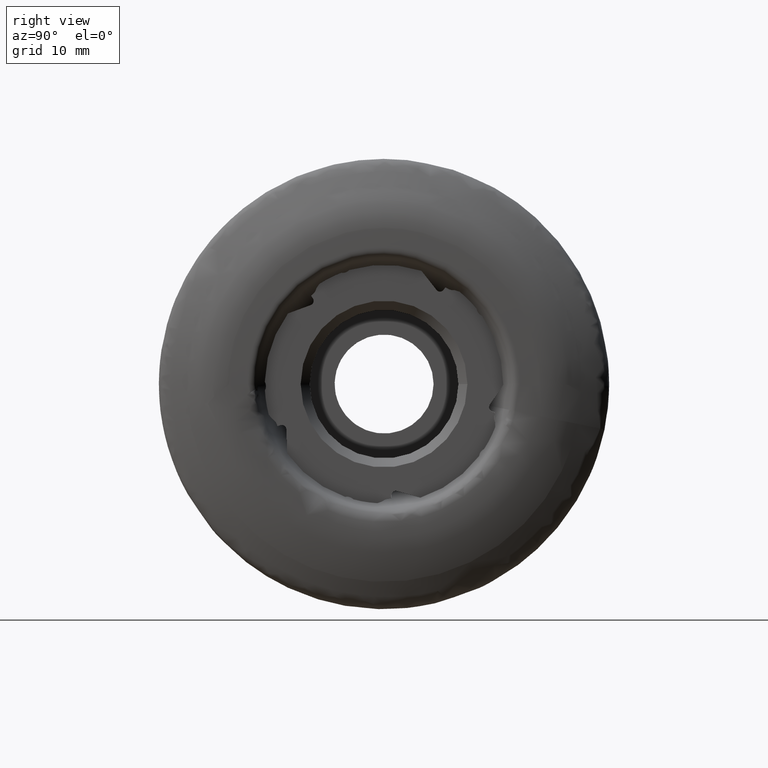
[diagram: clean part render]
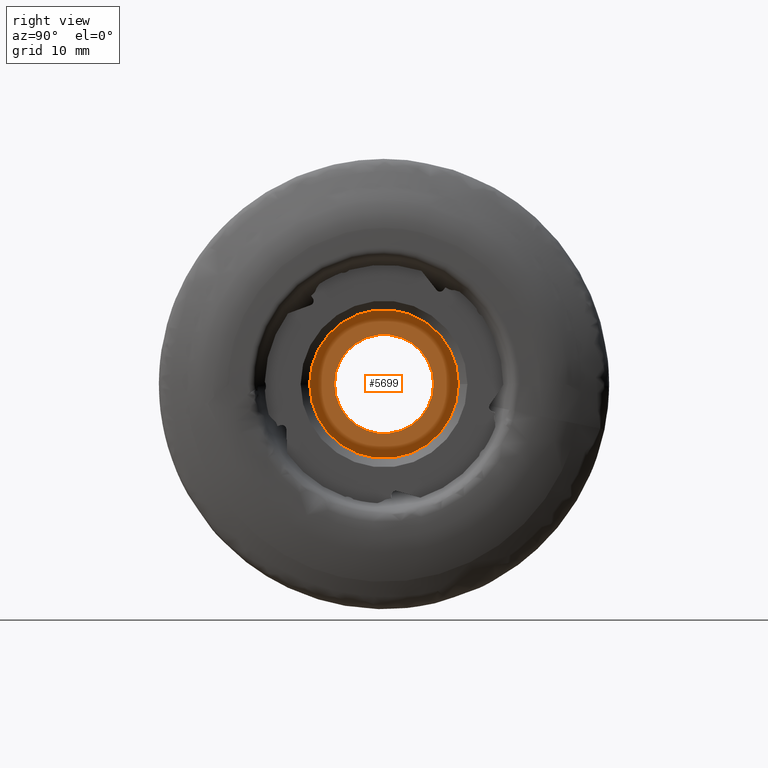
[diagram: same view with one face highlighted and labeled with its STEP entity id]
A machine part, right view. The second image highlights one B-rep face of the part: STEP entity #5699.
In plain terms, the highlighted planar face has unit normal (-1, -0, 0).
Its self-contained STEP definition (entity closure, byte-faithful):
#296 = DIRECTION ( 'NONE',  ( 1.000000000000000000, 1.167393512548520100E-018, -0.0000000000000000000 ) ) ;
#674 = CARTESIAN_POINT ( 'NONE',  ( -11.60525917703945500, 8.249999999999998200, 0.0000000000000000000 ) ) ;
#947 = ORIENTED_EDGE ( 'NONE', *, *, #10663, .F. ) ;
#1610 = DIRECTION ( 'NONE',  ( 1.000000000000000000, 1.167393512548520100E-018, -0.0000000000000000000 ) ) ;
#1721 = DIRECTION ( 'NONE',  ( 1.167393512548520100E-018, -1.000000000000000000, 0.0000000000000000000 ) ) ;
#2681 = AXIS2_PLACEMENT_3D ( 'NONE', #6606, #296, #7643 ) ;
#3667 = CARTESIAN_POINT ( 'NONE',  ( -11.60525917703945500, 8.249999999999998200, 0.0000000000000000000 ) ) ;
#3775 = VERTEX_POINT ( 'NONE', #3667 ) ;
#4730 = CARTESIAN_POINT ( 'NONE',  ( -11.60525917703945500, 5.499999999999998200, 0.0000000000000000000 ) ) ;
#4974 = FACE_OUTER_BOUND ( 'NONE', #10461, .T. ) ;
#5699 = ADVANCED_FACE ( 'NONE', ( #13012, #4974 ), #12211, .F. ) ;
#5876 = ORIENTED_EDGE ( 'NONE', *, *, #9086, .T. ) ;
#6606 = CARTESIAN_POINT ( 'NONE',  ( -11.60525917703945500, 3.433308638256045200E-017, 0.0000000000000000000 ) ) ;
#7643 = DIRECTION ( 'NONE',  ( 0.0000000000000000000, 1.000000000000000000, 0.0000000000000000000 ) ) ;
#7904 = CARTESIAN_POINT ( 'NONE',  ( -11.60525917703945500, 3.433308638256045200E-017, 0.0000000000000000000 ) ) ;
#8008 = DIRECTION ( 'NONE',  ( -1.000000000000000000, -1.167393512548520100E-018, 0.0000000000000000000 ) ) ;
#8975 = DIRECTION ( 'NONE',  ( 0.0000000000000000000, 1.000000000000000000, 0.0000000000000000000 ) ) ;
#9055 = AXIS2_PLACEMENT_3D ( 'NONE', #7904, #1610, #8975 ) ;
#9086 = EDGE_CURVE ( 'NONE', #3775, #3775, #10649, .T. ) ;
#10109 = EDGE_LOOP ( 'NONE', ( #947 ) ) ;
#10461 = EDGE_LOOP ( 'NONE', ( #5876 ) ) ;
#10649 = CIRCLE ( 'NONE', #2681, 8.249999999999998200 ) ;
#10663 = EDGE_CURVE ( 'NONE', #11835, #11835, #12490, .T. ) ;
#11835 = VERTEX_POINT ( 'NONE', #4730 ) ;
#12211 = PLANE ( 'NONE',  #13067 ) ;
#12490 = CIRCLE ( 'NONE', #9055, 5.499999999999998200 ) ;
#13012 = FACE_BOUND ( 'NONE', #10109, .T. ) ;
#13067 = AXIS2_PLACEMENT_3D ( 'NONE', #674, #8008, #1721 ) ;